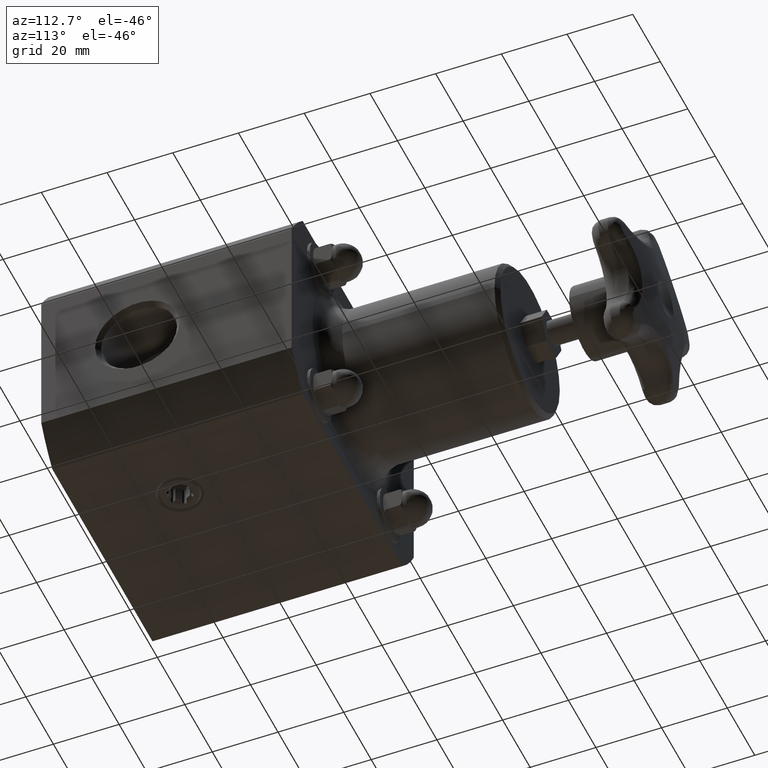
[diagram: clean part render]
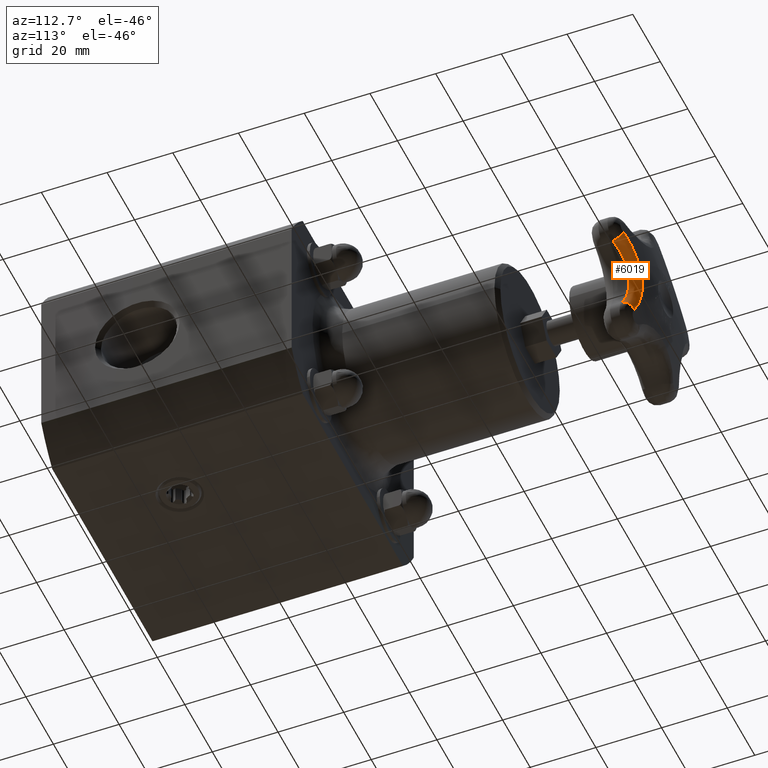
[diagram: same view with one face highlighted and labeled with its STEP entity id]
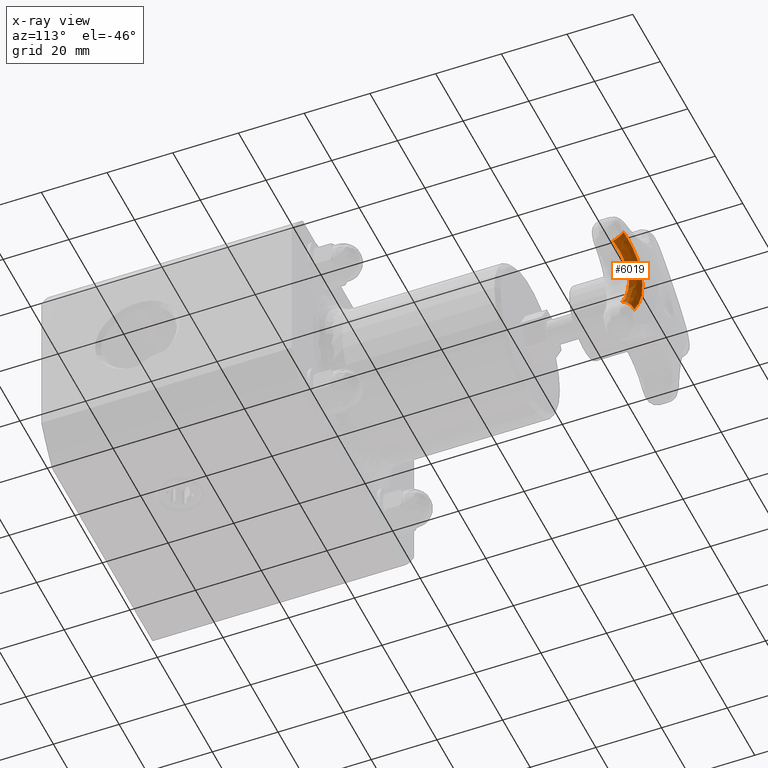
[diagram: x-ray of the same camera — body ghosted, the highlighted face saturated]
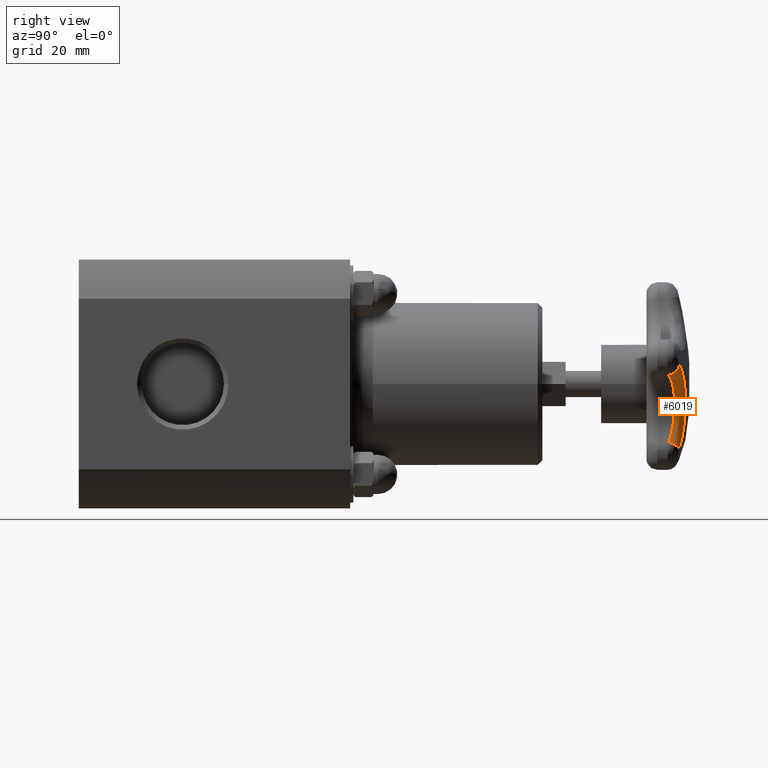
[diagram: same view with one face highlighted and labeled with its STEP entity id]
A machine part, auxiliary view. The second image highlights one B-rep face of the part: STEP entity #6019.
The next image is the same camera in x-ray: the body ghosted, the highlighted face saturated — about 0% of this face is hidden behind the body in this view.
A second angle (right view) of the same face is appended — the face is thin or edge-on in the first view.
In plain terms, the highlighted face is a freeform B-spline surface patch.
Its self-contained STEP definition (entity closure, byte-faithful):
#5157=CARTESIAN_POINT('',(0.634239059988193,6.637776509861761,-0.725030975725085));
#5158=VERTEX_POINT('',#5157);
#5159=CARTESIAN_POINT('',(0.939272693013333,6.637776509861744,0.213766014920971));
#5160=VERTEX_POINT('',#5159);
#5161=CARTESIAN_POINT('',(0.634239059988193,6.637776509861761,-0.725030975725085));
#5162=CARTESIAN_POINT('',(0.609404925107201,6.650252050247244,-0.679953289228776));
#5163=CARTESIAN_POINT('',(0.579294455053861,6.667192452955579,-0.606734243487656));
#5164=CARTESIAN_POINT('',(0.556967835139672,6.684642804559693,-0.503681006253304));
#5165=CARTESIAN_POINT('',(0.546606131551419,6.698481084472090,-0.398945333586911));
#5166=CARTESIAN_POINT('',(0.555107557235253,6.706715781382044,-0.291154861015661));
#5167=CARTESIAN_POINT('',(0.582018158676891,6.708693860780166,-0.188722018815155));
#5168=CARTESIAN_POINT('',(0.621145914532478,6.706618830791295,-0.088872559385013));
#5169=CARTESIAN_POINT('',(0.691304752369799,6.696312811710737,0.024903051940040));
#5170=CARTESIAN_POINT('',(0.803577734888463,6.672649093935761,0.136974357883211));
#5171=CARTESIAN_POINT('',(0.892685456524014,6.650252050247228,0.191894538714845));
#5172=CARTESIAN_POINT('',(0.939272693013333,6.637776509861745,0.213766014920971));
#5173=B_SPLINE_CURVE_WITH_KNOTS('',3,(#5161,#5162,#5163,#5164,#5165,#5166,#5167,#5168,#5169,#5170,#5171,#5172),.UNSPECIFIED.,.F.,.U.,(4,1,1,1,1,1,1,1,1,4),(0.0,0.391421298642903,0.587131947964354,0.782842597285806,1.174263895928709,1.369974545250160,1.565685194571612,1.957106493214515,2.348527791857418,2.739949090500320),.UNSPECIFIED.);
#5174=EDGE_CURVE('',#5158,#5160,#5173,.T.);
#5874=CARTESIAN_POINT('',(0.634239059988193,6.637776509861761,-0.725030975725085));
#5875=CARTESIAN_POINT('',(0.609404925107201,6.650252050247244,-0.679953289228776));
#5876=CARTESIAN_POINT('',(0.579294455053861,6.667192452955579,-0.606734243487656));
#5877=CARTESIAN_POINT('',(0.556967835139672,6.684642804559693,-0.503681006253304));
#5878=CARTESIAN_POINT('',(0.546606131551419,6.698481084472090,-0.398945333586911));
#5879=CARTESIAN_POINT('',(0.555107557235253,6.706715781382044,-0.291154861015661));
#5880=CARTESIAN_POINT('',(0.582018158676891,6.708693860780166,-0.188722018815155));
#5881=CARTESIAN_POINT('',(0.621145914532478,6.706618830791295,-0.088872559385013));
#5882=CARTESIAN_POINT('',(0.691304752369799,6.696312811710737,0.024903051940040));
#5883=CARTESIAN_POINT('',(0.803577734888463,6.672649093935761,0.136974357883211));
#5884=CARTESIAN_POINT('',(0.892685456524014,6.650252050247228,0.191894538714845));
#5885=CARTESIAN_POINT('',(0.939272693013333,6.637776509861745,0.213766014920971));
#5886=CARTESIAN_POINT('',(0.649326250264091,6.636908858405084,-0.716479034198390));
#5887=CARTESIAN_POINT('',(0.624922013413871,6.649087556793013,-0.672606587432959));
#5888=CARTESIAN_POINT('',(0.595291226411906,6.665636207509327,-0.601290078243605));
#5889=CARTESIAN_POINT('',(0.573231936767357,6.682687128622933,-0.500839747511297));
#5890=CARTESIAN_POINT('',(0.562897042583599,6.696212783897638,-0.398715930936870));
#5891=CARTESIAN_POINT('',(0.571050413164196,6.704263551122585,-0.293582188696802));
#5892=CARTESIAN_POINT('',(0.597261211030589,6.706197858285047,-0.193684360646999));
#5893=CARTESIAN_POINT('',(0.635449474294027,6.704169167913446,-0.096327056826646));
#5894=CARTESIAN_POINT('',(0.704019050094623,6.694092690859526,0.014542933064291));
#5895=CARTESIAN_POINT('',(0.813804498586235,6.670966357359712,0.123572500162957));
#5896=CARTESIAN_POINT('',(0.900920761698753,6.649087556792998,0.176830216444242));
#5897=CARTESIAN_POINT('',(0.946451781236042,6.636908858405068,0.197979320948270));
#5898=CARTESIAN_POINT('',(0.671027936608004,6.630018333410269,-0.702616174827582));
#5899=CARTESIAN_POINT('',(0.647327871365444,6.641871874451137,-0.660639790942728));
#5900=CARTESIAN_POINT('',(0.618484545529580,6.657986851605584,-0.592306778935904));
#5901=CARTESIAN_POINT('',(0.596884445832552,6.674603789290418,-0.495920493615012));
#5902=CARTESIAN_POINT('',(0.586624448963641,6.687788939116953,-0.397865115371666));
#5903=CARTESIAN_POINT('',(0.594257908933497,6.695640790575357,-0.296857098427023));
#5904=CARTESIAN_POINT('',(0.619388817094974,6.697526959083137,-0.200888873867868));
#5905=CARTESIAN_POINT('',(0.656116330573800,6.695548331829733,-0.107391254034759));
#5906=CARTESIAN_POINT('',(0.722197415169382,6.685721566422407,-0.001019147446062));
#5907=CARTESIAN_POINT('',(0.828058229739362,6.663177662465902,0.103300905967846));
#5908=CARTESIAN_POINT('',(0.912013575060981,6.641871874451121,0.153979041846522));
#5909=CARTESIAN_POINT('',(0.955860430002095,6.630018333410253,0.174008100943825));
#5910=CARTESIAN_POINT('',(0.694155462406552,6.611003630197336,-0.684612349518976));
#5911=CARTESIAN_POINT('',(0.671470270230678,6.622681473853003,-0.644934590203135));
#5912=CARTESIAN_POINT('',(0.643806065669776,6.638564527011587,-0.580249429029319));
#5913=CARTESIAN_POINT('',(0.622987405220015,6.654947211467553,-0.488874875111185));
#5914=CARTESIAN_POINT('',(0.612990663611032,6.667949201623548,-0.395855267989399));
#5915=CARTESIAN_POINT('',(0.620081087567978,6.675693807022973,-0.299970112760478));
#5916=CARTESIAN_POINT('',(0.643899242146531,6.677554310031534,-0.208871163815795));
#5917=CARTESIAN_POINT('',(0.678795217244139,6.675602689933607,-0.120141032368783));
#5918=CARTESIAN_POINT('',(0.741682392200291,6.665910037105095,-0.019278189368684));
#5919=CARTESIAN_POINT('',(0.842454575728261,6.643680580676111,0.079390444288992));
#5920=CARTESIAN_POINT('',(0.922313900648905,6.622681473852987,0.127082721540172));
#5921=CARTESIAN_POINT('',(0.963988608409713,6.611003630197319,0.145848681719002));
#5922=CARTESIAN_POINT('',(0.707803285743032,6.592548907288225,-0.671986046557040));
#5923=CARTESIAN_POINT('',(0.685900324663480,6.604213497940044,-0.633821715136433));
#5924=CARTESIAN_POINT('',(0.659170995659895,6.620077501710119,-0.571568548044175));
#5925=CARTESIAN_POINT('',(0.639026253117367,6.636440652817706,-0.483576540640530));
#5926=CARTESIAN_POINT('',(0.629322863057853,6.649426804850963,-0.393975208353058));
#5927=CARTESIAN_POINT('',(0.636111305805706,6.657161896271295,-0.301586400221315));
#5928=CARTESIAN_POINT('',(0.659051232568713,6.659020045033483,-0.213806870684417));
#5929=CARTESIAN_POINT('',(0.692684478196020,6.657070820472276,-0.128316237437521));
#5930=CARTESIAN_POINT('',(0.753322391304383,6.647390193731326,-0.031163306164470));
#5931=CARTESIAN_POINT('',(0.850486710775264,6.625187474922290,0.063793141739036));
#5932=CARTESIAN_POINT('',(0.927456075840019,6.604213497940028,0.109610443569464));
#5933=CARTESIAN_POINT('',(0.967608374753148,6.592548907288209,0.127611798763592));
#5934=CARTESIAN_POINT('',(0.717102291898512,6.570743515499204,-0.660828268549716));
#5935=CARTESIAN_POINT('',(0.695981132518150,6.582494055644238,-0.623881922181036));
#5936=CARTESIAN_POINT('',(0.670218376716466,6.598469550935316,-0.563631041608740));
#5937=CARTESIAN_POINT('',(0.650830412557999,6.614943031644813,-0.478488796091901));
#5938=CARTESIAN_POINT('',(0.641523647541669,6.628014564859908,-0.391797402317930));
#5939=CARTESIAN_POINT('',(0.648139652441445,6.635798897460732,-0.302415490607462));
#5940=CARTESIAN_POINT('',(0.670346312724494,6.637668855302048,-0.217487645199323));
#5941=CARTESIAN_POINT('',(0.702876706508143,6.635707241079086,-0.134767038399537));
#5942=CARTESIAN_POINT('',(0.761492024479871,6.625964966435499,-0.040740429938535));
#5943=CARTESIAN_POINT('',(0.855389726266359,6.603615428000711,0.051216904273062));
#5944=CARTESIAN_POINT('',(0.929769157001451,6.582494055644223,0.095643631959809));
#5945=CARTESIAN_POINT('',(0.968573051402668,6.570743515499188,0.113119148057035));
#5946=CARTESIAN_POINT('',(0.721620169343438,6.546619597203512,-0.651662836006259));
#5947=CARTESIAN_POINT('',(0.701253865510630,6.558526973416625,-0.615569494415581));
#5948=CARTESIAN_POINT('',(0.676461291786617,6.574706702945008,-0.556787430128598));
#5949=CARTESIAN_POINT('',(0.657897508843141,6.591382816742446,-0.473829424773382));
#5950=CARTESIAN_POINT('',(0.649088014080832,6.604611494307062,-0.389411813634546));
#5951=CARTESIAN_POINT('',(0.655676836945697,6.612486675865813,-0.302423792990257));
#5952=CARTESIAN_POINT('',(0.677326863981851,6.614378437220063,-0.219764364570778));
#5953=CARTESIAN_POINT('',(0.708957354328702,6.612393962179791,-0.139230615991925));
#5954=CARTESIAN_POINT('',(0.765851115772740,6.602537928206056,-0.047612143879178));
#5955=CARTESIAN_POINT('',(0.856948770811385,6.579918340365762,0.042209765734987));
#5956=CARTESIAN_POINT('',(0.929148965147886,6.558526973416610,0.085819501940785));
#5957=CARTESIAN_POINT('',(0.966840784954189,6.546619597203495,0.103048615634788));
#5958=CARTESIAN_POINT('',(0.721303949636513,6.529745902372997,-0.647167143476138));
#5959=CARTESIAN_POINT('',(0.701402656790473,6.541782556103513,-0.611365861850863));
#5960=CARTESIAN_POINT('',(0.677235872548974,6.558130517643028,-0.553155332666793));
#5961=CARTESIAN_POINT('',(0.659249538971134,6.574973786752031,-0.471141387263855));
#5962=CARTESIAN_POINT('',(0.650830427089811,6.588332078731110,-0.387748440861493));
#5963=CARTESIAN_POINT('',(0.657502383293284,6.596282239351424,-0.301881828152666));
#5964=CARTESIAN_POINT('',(0.678914949568392,6.598191972756829,-0.220284418700751));
#5965=CARTESIAN_POINT('',(0.710104454359487,6.596188628762155,-0.140760123977607));
#5966=CARTESIAN_POINT('',(0.766094911058221,6.586238749414862,-0.050199290789931));
#5967=CARTESIAN_POINT('',(0.855711873851602,6.563396342706230,0.038846279501467));
#5968=CARTESIAN_POINT('',(0.926798506594295,6.541782556103497,0.082331234437859));
#5969=CARTESIAN_POINT('',(0.963942456069283,6.529745902372979,0.099597393256651));
#5970=CARTESIAN_POINT('',(0.720317002653470,6.521308214565909,-0.645375686398882));
#5971=CARTESIAN_POINT('',(0.700633113442555,6.533409488739827,-0.609646469692531));
#5972=CARTESIAN_POINT('',(0.676767125782476,6.549841679366913,-0.551612010614183));
#5973=CARTESIAN_POINT('',(0.659070728668136,6.566768520422904,-0.469930546199664));
#5974=CARTESIAN_POINT('',(0.650857894742375,6.580191651937929,-0.386915559485799));
#5975=CARTESIAN_POINT('',(0.657596245890799,6.588179307940584,-0.301479294834248));
#5976=CARTESIAN_POINT('',(0.678925972088818,6.590098044956761,-0.220289564364636));
#5977=CARTESIAN_POINT('',(0.709939188978553,6.588085265867556,-0.141147459893863));
#5978=CARTESIAN_POINT('',(0.765548083662191,6.578088427359415,-0.050967288973533));
#5979=CARTESIAN_POINT('',(0.854537249577041,6.555134621117687,0.037862025213546));
#5980=CARTESIAN_POINT('',(0.925165299594346,6.533409488739811,0.081392543192680));
#5981=CARTESIAN_POINT('',(0.962091007137328,6.521308214565892,0.098728186917885));
#5982=B_SPLINE_SURFACE_WITH_KNOTS('',3,3,((#5874,#5886,#5898,#5910,#5922,#5934,#5946,#5958,#5970),(#5875,#5887,#5899,#5911,#5923,#5935,#5947,#5959,#5971),(#5876,#5888,#5900,#5912,#5924,#5936,#5948,#5960,#5972),(#5877,#5889,#5901,#5913,#5925,#5937,#5949,#5961,#5973),(#5878,#5890,#5902,#5914,#5926,#5938,#5950,#5962,#5974),(#5879,#5891,#5903,#5915,#5927,#5939,#5951,#5963,#5975),(#5880,#5892,#5904,#5916,#5928,#5940,#5952,#5964,#5976),(#5881,#5893,#5905,#5917,#5929,#5941,#5953,#5965,#5977),(#5882,#5894,#5906,#5918,#5930,#5942,#5954,#5966,#5978),(#5883,#5895,#5907,#5919,#5931,#5943,#5955,#5967,#5979),(#5884,#5896,#5908,#5920,#5932,#5944,#5956,#5968,#5980),(#5885,#5897,#5909,#5921,#5933,#5945,#5957,#5969,#5981)),.UNSPECIFIED.,.F.,.F.,.U.,(4,1,1,1,1,1,1,1,1,4),(4,1,1,1,1,1,4),(0.0,0.391421298642903,0.587131947964354,0.782842597285806,1.174263895928709,1.369974545250160,1.565685194571612,1.957106493214515,2.348527791857418,2.739949090500320),(0.0,0.285714285714286,0.428571428571429,0.571428571428571,0.714285714285714,0.857142857142857,1.0),.UNSPECIFIED.);
#5983=CARTESIAN_POINT('',(0.962091007137195,6.521308214565893,0.098728186917824));
#5984=VERTEX_POINT('',#5983);
#5985=CARTESIAN_POINT('',(0.911094512222933,6.521308214565893,0.207353034473342));
#5986=DIRECTION('',(-0.879729593103953,0.235581736418005,-0.413009792236735));
#5987=DIRECTION('',(0.234818173253335,0.970569127465436,0.053441503730243));
#5988=AXIS2_PLACEMENT_3D('',#5985,#5986,#5987);
#5989=CIRCLE('',#5988,0.119999999999999);
#5990=EDGE_CURVE('',#5160,#5984,#5989,.T.);
#5991=ORIENTED_EDGE('',*,*,#5990,.T.);
#5992=CARTESIAN_POINT('',(0.720317002653413,6.521308214565910,-0.645375686398779));
#5993=VERTEX_POINT('',#5992);
#5994=CARTESIAN_POINT('',(0.962091007137328,6.521308214565892,0.098728186917885));
#5995=CARTESIAN_POINT('',(0.925165299594346,6.533409488739811,0.081392543192680));
#5996=CARTESIAN_POINT('',(0.854537249577041,6.555134621117687,0.037862025213546));
#5997=CARTESIAN_POINT('',(0.765548083662191,6.578088427359415,-0.050967288973533));
#5998=CARTESIAN_POINT('',(0.709939188978553,6.588085265867556,-0.141147459893863));
#5999=CARTESIAN_POINT('',(0.678925972088818,6.590098044956761,-0.220289564364636));
#6000=CARTESIAN_POINT('',(0.657596245890799,6.588179307940584,-0.301479294834248));
#6001=CARTESIAN_POINT('',(0.650857894742375,6.580191651937929,-0.386915559485799));
#6002=CARTESIAN_POINT('',(0.659070728668136,6.566768520422904,-0.469930546199664));
#6003=CARTESIAN_POINT('',(0.676767125782476,6.549841679366913,-0.551612010614183));
#6004=CARTESIAN_POINT('',(0.700633113442555,6.533409488739827,-0.609646469692531));
#6005=CARTESIAN_POINT('',(0.720317002653470,6.521308214565909,-0.645375686398882));
#6006=B_SPLINE_CURVE_WITH_KNOTS('',3,(#5994,#5995,#5996,#5997,#5998,#5999,#6000,#6001,#6002,#6003,#6004,#6005),.UNSPECIFIED.,.F.,.U.,(4,1,1,1,1,1,1,1,1,4),(-2.739949090500320,-2.348527791857418,-1.957106493214515,-1.565685194571612,-1.369974545250160,-1.174263895928709,-0.782842597285806,-0.587131947964354,-0.391421298642903,0.0),.UNSPECIFIED.);
#6007=EDGE_CURVE('',#5984,#5993,#6006,.T.);
#6008=ORIENTED_EDGE('',*,*,#6007,.T.);
#6009=CARTESIAN_POINT('',(0.615211888188548,6.521308214565909,-0.703280046453333));
#6010=DIRECTION('',(-0.468955126346229,0.235581736417968,0.851224021594719));
#6011=DIRECTION('',(0.875875953873883,7.211328E-016,0.482536333787950));
#6012=AXIS2_PLACEMENT_3D('',#6009,#6010,#6011);
#6013=CIRCLE('',#6012,0.120000000000000);
#6014=EDGE_CURVE('',#5993,#5158,#6013,.T.);
#6015=ORIENTED_EDGE('',*,*,#6014,.T.);
#6016=ORIENTED_EDGE('',*,*,#5174,.T.);
#6017=EDGE_LOOP('',(#5991,#6008,#6015,#6016));
#6018=FACE_OUTER_BOUND('',#6017,.T.);
#6019=ADVANCED_FACE('',(#6018),#5982,.T.);